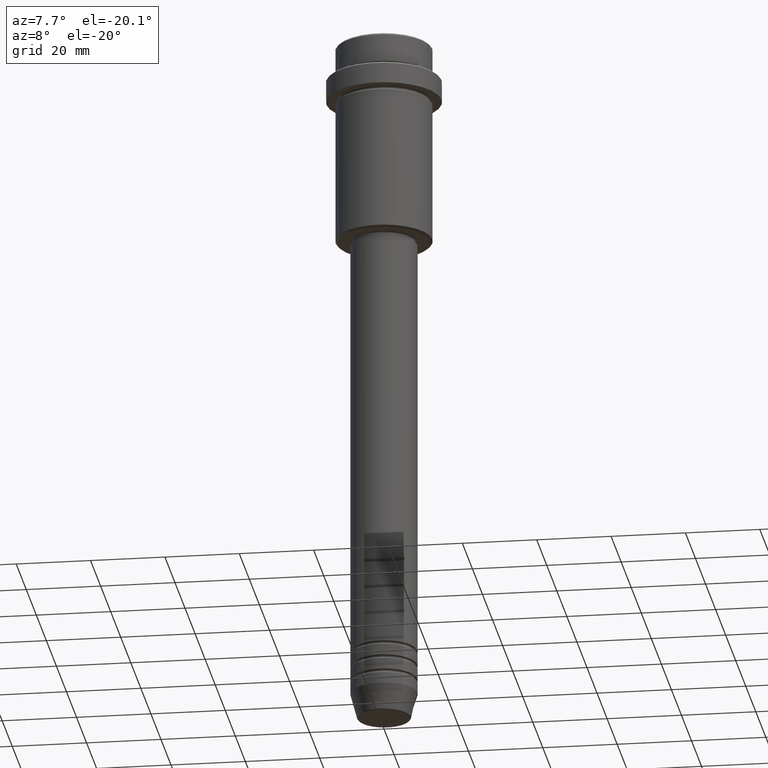
[diagram: clean part render]
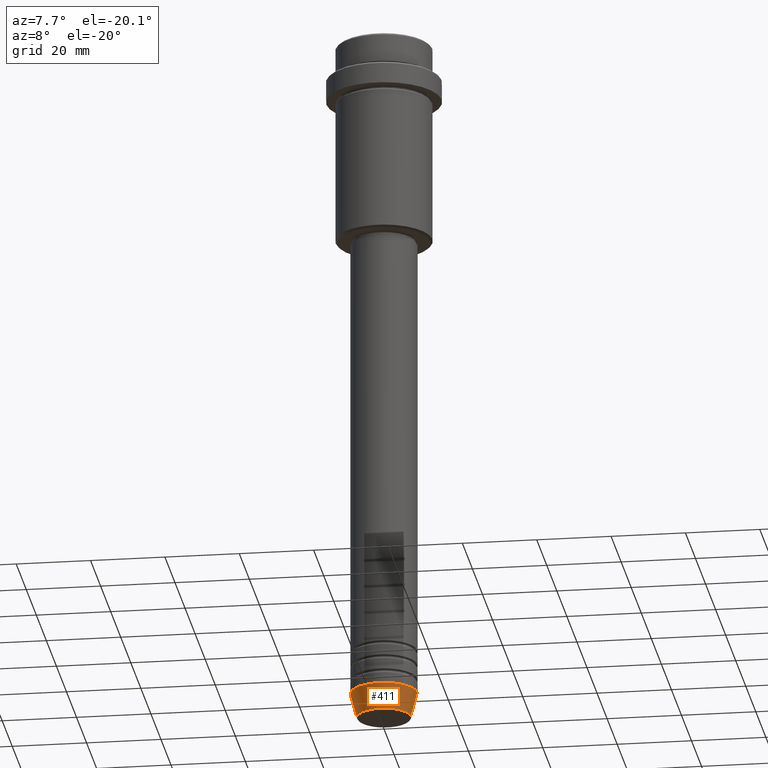
[diagram: same view with one face highlighted and labeled with its STEP entity id]
A machine part, auxiliary view. The second image highlights one B-rep face of the part: STEP entity #411.
In plain terms, the highlighted conical surface has half-angle 15 deg.
Its self-contained STEP definition (entity closure, byte-faithful):
#3 = CARTESIAN_POINT ( 'NONE',  ( 7.223655072137188604, 0.000000000000000000, -189.6294095225512706 ) ) ;
#43 = ORIENTED_EDGE ( 'NONE', *, *, #1120, .F. ) ;
#65 = DIRECTION ( 'NONE',  ( -0.2588190451025213501, 3.169619151431772337E-17, 0.9659258262890680902 ) ) ;
#100 = EDGE_LOOP ( 'NONE', ( #43, #851, #1192, #564 ) ) ;
#170 = AXIS2_PLACEMENT_3D ( 'NONE', #171, #639, #1065 ) ;
#171 = CARTESIAN_POINT ( 'NONE',  ( 0.000000000000000000, 0.000000000000000000, -183.0000000000000000 ) ) ;
#215 = CARTESIAN_POINT ( 'NONE',  ( 0.000000000000000000, 0.000000000000000000, -183.0000000000000000 ) ) ;
#293 = EDGE_CURVE ( 'NONE', #752, #364, #1040, .T. ) ;
#296 = CARTESIAN_POINT ( 'NONE',  ( 9.000000000000000000, 0.000000000000000000, -183.0000000000000000 ) ) ;
#364 = VERTEX_POINT ( 'NONE', #964 ) ;
#409 = LINE ( 'NONE', #605, #1313 ) ;
#411 = ADVANCED_FACE ( 'NONE', ( #448 ), #1363, .T. ) ;
#414 = VERTEX_POINT ( 'NONE', #3 ) ;
#448 = FACE_OUTER_BOUND ( 'NONE', #100, .T. ) ;
#449 = VERTEX_POINT ( 'NONE', #904 ) ;
#459 = DIRECTION ( 'NONE',  ( -0.000000000000000000, -0.000000000000000000, 1.000000000000000000 ) ) ;
#494 = LINE ( 'NONE', #296, #552 ) ;
#525 = AXIS2_PLACEMENT_3D ( 'NONE', #991, #788, #643 ) ;
#552 = VECTOR ( 'NONE', #629, 1000.000000000000000 ) ;
#564 = ORIENTED_EDGE ( 'NONE', *, *, #293, .F. ) ;
#605 = CARTESIAN_POINT ( 'NONE',  ( -9.000000000000000000, 1.102182119232617714E-15, -183.0000000000000000 ) ) ;
#614 = CIRCLE ( 'NONE', #525, 7.223655072137188604 ) ;
#629 = DIRECTION ( 'NONE',  ( 0.2588190451025213501, 0.000000000000000000, 0.9659258262890680902 ) ) ;
#639 = DIRECTION ( 'NONE',  ( -0.000000000000000000, -0.000000000000000000, 1.000000000000000000 ) ) ;
#643 = DIRECTION ( 'NONE',  ( 1.000000000000000000, 0.000000000000000000, 0.000000000000000000 ) ) ;
#722 = EDGE_CURVE ( 'NONE', #414, #364, #494, .T. ) ;
#752 = VERTEX_POINT ( 'NONE', #1176 ) ;
#788 = DIRECTION ( 'NONE',  ( -0.000000000000000000, -0.000000000000000000, 1.000000000000000000 ) ) ;
#809 = EDGE_CURVE ( 'NONE', #449, #414, #614, .T. ) ;
#851 = ORIENTED_EDGE ( 'NONE', *, *, #809, .T. ) ;
#904 = CARTESIAN_POINT ( 'NONE',  ( -7.223655072137189492, 9.934123627281765110E-16, -189.6294095225512706 ) ) ;
#938 = AXIS2_PLACEMENT_3D ( 'NONE', #215, #459, #999 ) ;
#964 = CARTESIAN_POINT ( 'NONE',  ( 9.000000000000000000, 0.000000000000000000, -183.0000000000000000 ) ) ;
#991 = CARTESIAN_POINT ( 'NONE',  ( 0.000000000000000000, 0.000000000000000000, -189.6294095225512706 ) ) ;
#999 = DIRECTION ( 'NONE',  ( 1.000000000000000000, 0.000000000000000000, 0.000000000000000000 ) ) ;
#1040 = CIRCLE ( 'NONE', #170, 9.000000000000000000 ) ;
#1065 = DIRECTION ( 'NONE',  ( 1.000000000000000000, 0.000000000000000000, 0.000000000000000000 ) ) ;
#1120 = EDGE_CURVE ( 'NONE', #449, #752, #409, .T. ) ;
#1176 = CARTESIAN_POINT ( 'NONE',  ( -9.000000000000000000, 1.102182119232617714E-15, -183.0000000000000000 ) ) ;
#1192 = ORIENTED_EDGE ( 'NONE', *, *, #722, .T. ) ;
#1313 = VECTOR ( 'NONE', #65, 1000.000000000000000 ) ;
#1363 = CONICAL_SURFACE ( 'NONE', #938, 9.000000000000000000, 0.2617993877991500740 ) ;